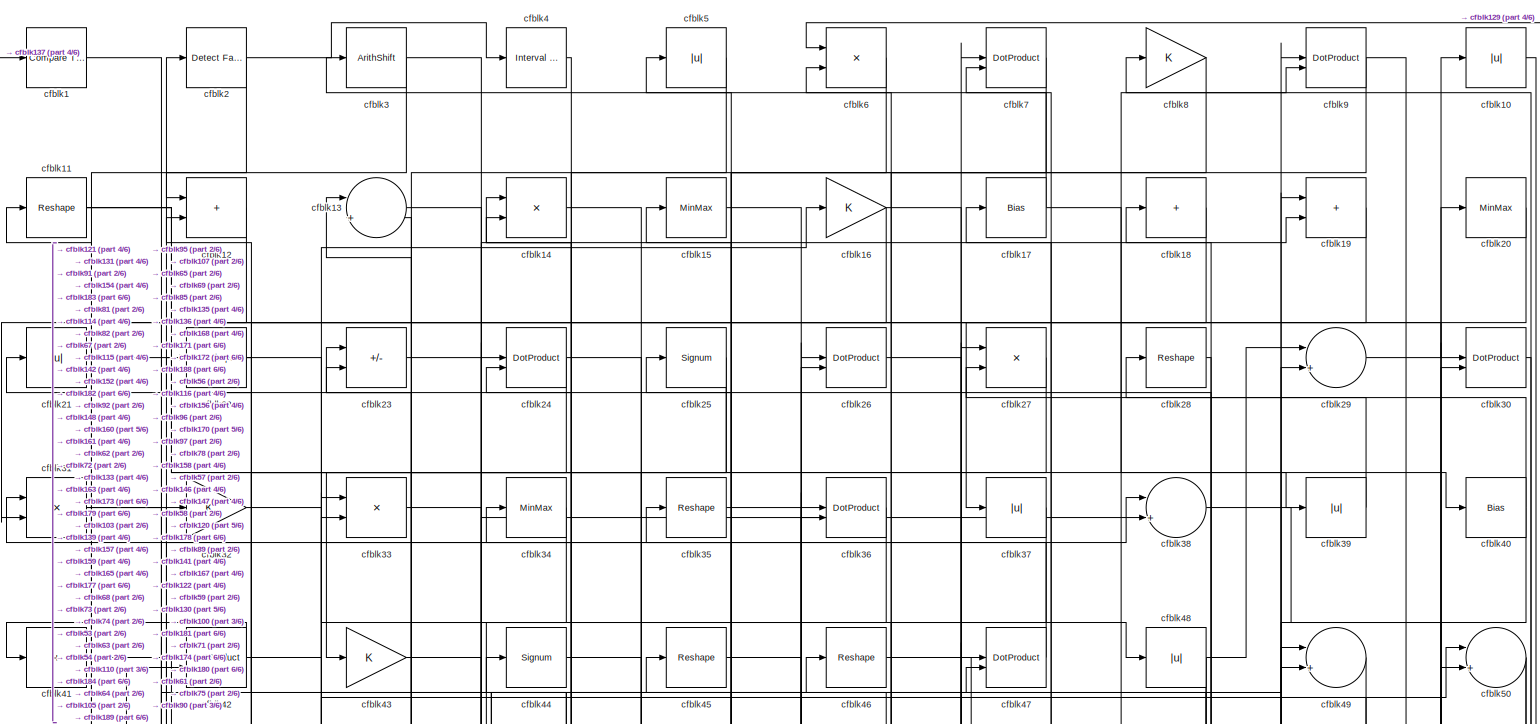
[diagram: root canvas - part 1/6, full width, top band]
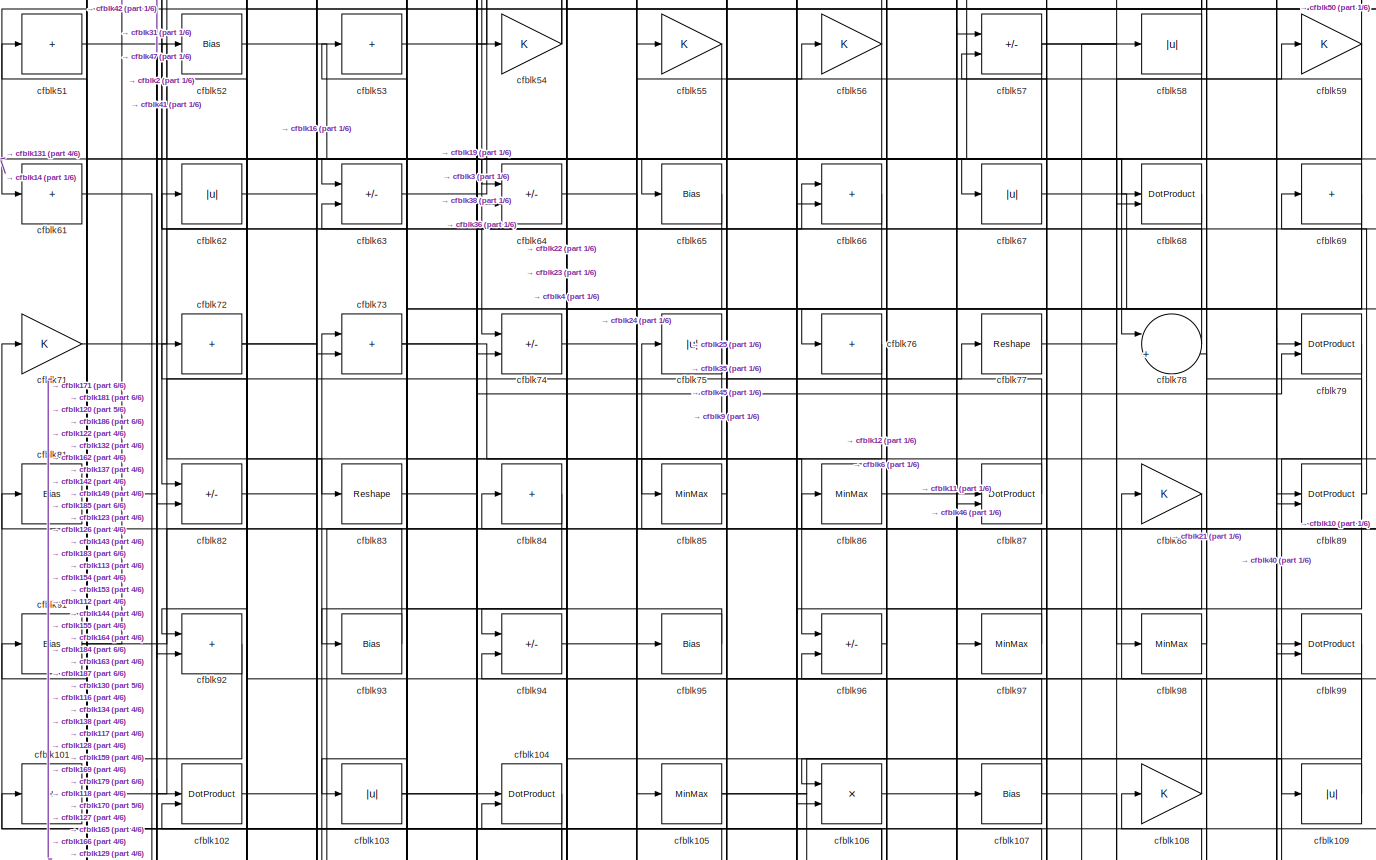
[diagram: root canvas - part 2/6, full width, middle band]
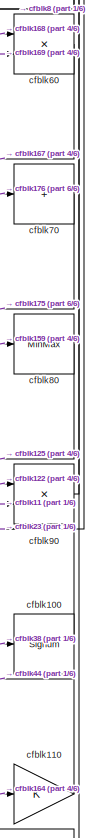
[diagram: root canvas - part 3/6, middle right region]
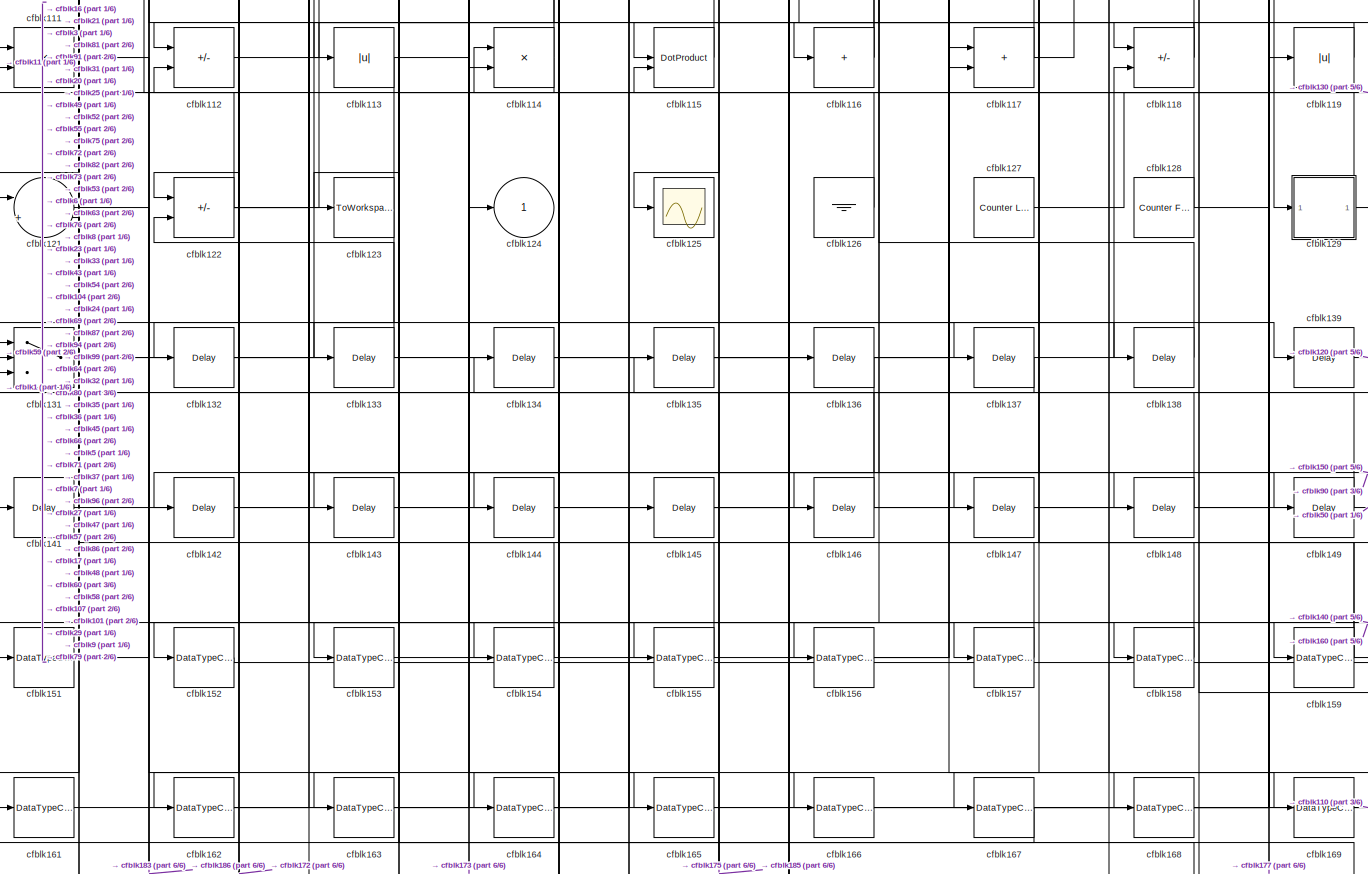
[diagram: root canvas - part 4/6, full width, bottom band]
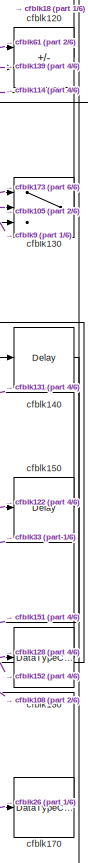
[diagram: root canvas - part 5/6, bottom right region]
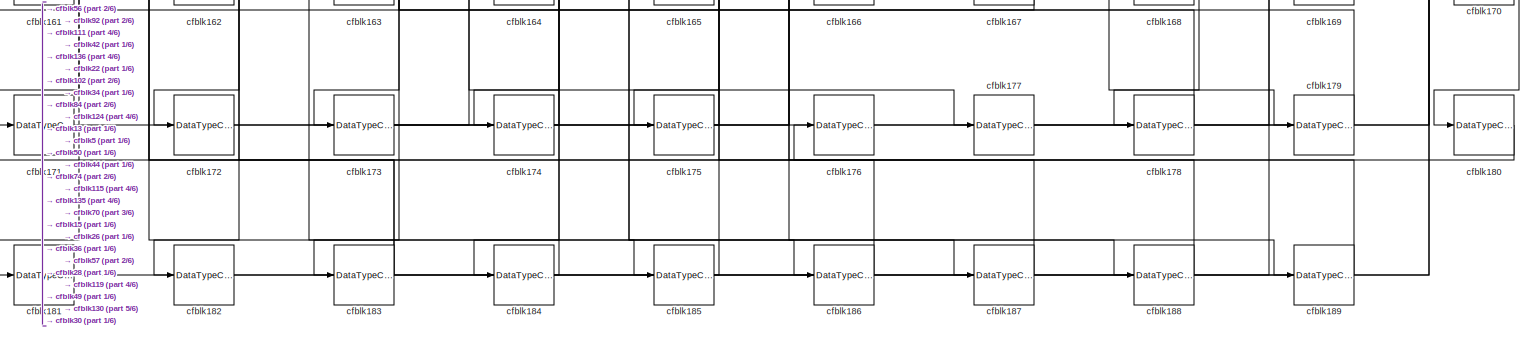
[diagram: root canvas - part 6/6, full width, bottom band]
MODEL slx_008d7ec1de27
KIND model
CONFIG AbsTol = auto
CONFIG EnableMultiTasking = off
CONFIG FixedStep = auto
CONFIG MaxStep = auto
CONFIG MinStep = auto
CONFIG RelTol = 1e-3
CONFIG SampleTimeConstraint = Unconstrained
CONFIG SolverName = VariableStepAuto
CONFIG StartTime = 0.0
CONFIG StopTime = 10.0
BLOCK [Reference] cfblk1  REF=hdlsllib/Logic and Bit
Operations/Compare
To Constant
  SourceBlock = hdlsllib/Logic and Bit\nOperations/Compare\nTo Constant
  SourceType = Compare To Constant
BLOCK [Abs] cfblk10
  SaturateOnIntegerOverflow = off
BLOCK [Signum] cfblk100
BLOCK [Sum] cfblk101
  IconShape = rectangular
  Inputs = +
BLOCK [DotProduct] cfblk102
  OutDataTypeStr = Inherit: Inherit via internal rule
BLOCK [Abs] cfblk103
  SaturateOnIntegerOverflow = off
BLOCK [DotProduct] cfblk104
  OutDataTypeStr = Inherit: Inherit via internal rule
BLOCK [MinMax] cfblk105
BLOCK [Product] cfblk106
  Inputs = */
  RndMeth = Zero
  SaturateOnIntegerOverflow = on
BLOCK [Bias] cfblk107
  Bias = 0.0
  SaturateOnIntegerOverflow = off
BLOCK [Gain] cfblk108
BLOCK [Abs] cfblk109
  SaturateOnIntegerOverflow = off
BLOCK [Reshape] cfblk11
BLOCK [Gain] cfblk110
BLOCK [Product] cfblk111
  Inputs = */
  RndMeth = Zero
  SaturateOnIntegerOverflow = on
BLOCK [Sum] cfblk112
  IconShape = rectangular
  Inputs = +-
BLOCK [Abs] cfblk113
  SaturateOnIntegerOverflow = off
BLOCK [Product] cfblk114
  Inputs = */
  RndMeth = Zero
  SaturateOnIntegerOverflow = on
BLOCK [DotProduct] cfblk115
  OutDataTypeStr = Inherit: Inherit via internal rule
BLOCK [Sum] cfblk116
  IconShape = rectangular
  Inputs = +
BLOCK [Sum] cfblk117
  IconShape = rectangular
BLOCK [Sum] cfblk118
  IconShape = rectangular
  Inputs = +-
BLOCK [Abs] cfblk119
  SaturateOnIntegerOverflow = off
BLOCK [Sum] cfblk12
  IconShape = rectangular
BLOCK [Sum] cfblk120
  IconShape = rectangular
  Inputs = +-
BLOCK [Sum] cfblk121
  Inputs = |++
BLOCK [Sum] cfblk122
  IconShape = rectangular
  Inputs = +-
BLOCK [ToWorkspace] cfblk123
  MaxDataPoints = inf
  SampleTime = -1
  SaveFormat = Timeseries
  VariableName = simout
BLOCK [Outport] cfblk124
  VectorParamsAs1DForOutWhenUnconnected = off
BLOCK [Scope] cfblk125
  Floating = off
  NumInputPorts = 1
  ScopeSpecificationString = Simulink.scopes.TimeScopeBlockCfg('CurrentConfiguration', extmgr.ConfigurationSet(extmgr.Configuration('Core','General UI',true),extmgr.Configuration('Core','Source UI',true),extmgr.Configuration('Sources','WiredSimulink',true,'DataLoggingVariableName','ScopeData2','DataLoggingSaveFormat','Array','DataLoggingLimitDataPoints',true,'DataLoggingDecimation','1'),extmgr.Configuration('Visuals','Time Do...<+868ch>
BLOCK [Ground] cfblk126
BLOCK [Reference] cfblk127  REF=hdlsllib/Sources/Counter
Limited
  SourceBlock = hdlsllib/Sources/Counter\nLimited
  SourceType = Counter Limited
BLOCK [Reference] cfblk128  REF=hdlsllib/Sources/Counter
Free-Running
  SourceBlock = hdlsllib/Sources/Counter\nFree-Running
  SourceType = Counter Free-Running
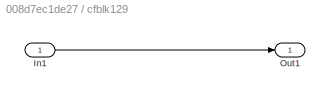
BLOCK [SubSystem] cfblk129
  LibrarySourceBlock = hdlsllib/Ports &\nSubsystems/Subsystem
BLOCK [Inport] cfblk129/In1
BLOCK [Outport] cfblk129/Out1
BLOCK [Sum] cfblk13
  Inputs = |++
BLOCK [Switch] cfblk130
  InputSameDT = off
  SaturateOnIntegerOverflow = off
BLOCK [Switch] cfblk131
  InputSameDT = off
  SaturateOnIntegerOverflow = off
BLOCK [Delay] cfblk132
  InputPortMap = u0
  SampleTime = 1
BLOCK [Delay] cfblk133
  InputPortMap = u0
  SampleTime = 1
BLOCK [Delay] cfblk134
  InputPortMap = u0
  SampleTime = 1
BLOCK [Delay] cfblk135
  InputPortMap = u0
  SampleTime = 1
BLOCK [Delay] cfblk136
  InputPortMap = u0
  SampleTime = 1
BLOCK [Delay] cfblk137
  InputPortMap = u0
  SampleTime = 1
BLOCK [Delay] cfblk138
  InputPortMap = u0
  SampleTime = 1
BLOCK [Delay] cfblk139
  InputPortMap = u0
  SampleTime = 1
BLOCK [Product] cfblk14
  Inputs = */
  RndMeth = Zero
  SaturateOnIntegerOverflow = on
BLOCK [Delay] cfblk140
  InputPortMap = u0
  SampleTime = 1
BLOCK [Delay] cfblk141
  InputPortMap = u0
  SampleTime = 1
BLOCK [Delay] cfblk142
  InputPortMap = u0
  SampleTime = 1
BLOCK [Delay] cfblk143
  InputPortMap = u0
  SampleTime = 1
BLOCK [Delay] cfblk144
  InputPortMap = u0
  SampleTime = 1
BLOCK [Delay] cfblk145
  InputPortMap = u0
  SampleTime = 1
BLOCK [Delay] cfblk146
  InputPortMap = u0
  SampleTime = 1
BLOCK [Delay] cfblk147
  InputPortMap = u0
  SampleTime = 1
BLOCK [Delay] cfblk148
  InputPortMap = u0
  SampleTime = 1
BLOCK [Delay] cfblk149
  InputPortMap = u0
  SampleTime = 1
BLOCK [MinMax] cfblk15
BLOCK [Delay] cfblk150
  InputPortMap = u0
  SampleTime = 1
BLOCK [DataTypeConversion] cfblk151
  OutDataTypeStr = uint8
  RndMeth = Floor
  SaturateOnIntegerOverflow = off
BLOCK [DataTypeConversion] cfblk152
  OutDataTypeStr = uint8
  RndMeth = Floor
  SaturateOnIntegerOverflow = off
BLOCK [DataTypeConversion] cfblk153
  OutDataTypeStr = uint8
  RndMeth = Floor
  SaturateOnIntegerOverflow = off
BLOCK [DataTypeConversion] cfblk154
  OutDataTypeStr = uint8
  RndMeth = Floor
  SaturateOnIntegerOverflow = off
BLOCK [DataTypeConversion] cfblk155
  OutDataTypeStr = uint8
  RndMeth = Floor
  SaturateOnIntegerOverflow = off
BLOCK [DataTypeConversion] cfblk156
  OutDataTypeStr = uint8
  RndMeth = Floor
  SaturateOnIntegerOverflow = off
BLOCK [DataTypeConversion] cfblk157
  OutDataTypeStr = uint8
  RndMeth = Floor
  SaturateOnIntegerOverflow = off
BLOCK [DataTypeConversion] cfblk158
  OutDataTypeStr = uint8
  RndMeth = Floor
  SaturateOnIntegerOverflow = off
BLOCK [DataTypeConversion] cfblk159
  RndMeth = Floor
  SaturateOnIntegerOverflow = off
BLOCK [Gain] cfblk16
BLOCK [DataTypeConversion] cfblk160
  OutDataTypeStr = uint8
  RndMeth = Floor
  SaturateOnIntegerOverflow = off
BLOCK [DataTypeConversion] cfblk161
  OutDataTypeStr = uint8
  RndMeth = Floor
  SaturateOnIntegerOverflow = off
BLOCK [DataTypeConversion] cfblk162
  RndMeth = Floor
  SaturateOnIntegerOverflow = off
BLOCK [DataTypeConversion] cfblk163
  OutDataTypeStr = uint8
  RndMeth = Floor
  SaturateOnIntegerOverflow = off
BLOCK [DataTypeConversion] cfblk164
  RndMeth = Floor
  SaturateOnIntegerOverflow = off
BLOCK [DataTypeConversion] cfblk165
  OutDataTypeStr = uint8
  RndMeth = Floor
  SaturateOnIntegerOverflow = off
BLOCK [DataTypeConversion] cfblk166
  OutDataTypeStr = uint8
  RndMeth = Floor
  SaturateOnIntegerOverflow = off
BLOCK [DataTypeConversion] cfblk167
  RndMeth = Floor
  SaturateOnIntegerOverflow = off
BLOCK [DataTypeConversion] cfblk168
  OutDataTypeStr = uint8
  RndMeth = Floor
  SaturateOnIntegerOverflow = off
BLOCK [DataTypeConversion] cfblk169
  OutDataTypeStr = uint8
  RndMeth = Floor
  SaturateOnIntegerOverflow = off
BLOCK [Bias] cfblk17
  Bias = 0.0
  SaturateOnIntegerOverflow = off
BLOCK [DataTypeConversion] cfblk170
  OutDataTypeStr = uint8
  RndMeth = Floor
  SaturateOnIntegerOverflow = off
BLOCK [DataTypeConversion] cfblk171
  OutDataTypeStr = uint8
  RndMeth = Floor
  SaturateOnIntegerOverflow = off
BLOCK [DataTypeConversion] cfblk172
  OutDataTypeStr = uint8
  RndMeth = Floor
  SaturateOnIntegerOverflow = off
BLOCK [DataTypeConversion] cfblk173
  RndMeth = Floor
  SaturateOnIntegerOverflow = off
BLOCK [DataTypeConversion] cfblk174
  OutDataTypeStr = uint8
  RndMeth = Floor
  SaturateOnIntegerOverflow = off
BLOCK [DataTypeConversion] cfblk175
  OutDataTypeStr = uint8
  RndMeth = Floor
  SaturateOnIntegerOverflow = off
BLOCK [DataTypeConversion] cfblk176
  OutDataTypeStr = uint8
  RndMeth = Floor
  SaturateOnIntegerOverflow = off
BLOCK [DataTypeConversion] cfblk177
  OutDataTypeStr = uint8
  RndMeth = Floor
  SaturateOnIntegerOverflow = off
BLOCK [DataTypeConversion] cfblk178
  OutDataTypeStr = uint8
  RndMeth = Floor
  SaturateOnIntegerOverflow = off
BLOCK [DataTypeConversion] cfblk179
  OutDataTypeStr = uint8
  RndMeth = Floor
  SaturateOnIntegerOverflow = off
BLOCK [Sum] cfblk18
  IconShape = rectangular
  Inputs = +
BLOCK [DataTypeConversion] cfblk180
  OutDataTypeStr = uint8
  RndMeth = Floor
  SaturateOnIntegerOverflow = off
BLOCK [DataTypeConversion] cfblk181
  OutDataTypeStr = uint8
  RndMeth = Floor
  SaturateOnIntegerOverflow = off
BLOCK [DataTypeConversion] cfblk182
  OutDataTypeStr = uint8
  RndMeth = Floor
  SaturateOnIntegerOverflow = off
BLOCK [DataTypeConversion] cfblk183
  RndMeth = Floor
  SaturateOnIntegerOverflow = off
BLOCK [DataTypeConversion] cfblk184
  OutDataTypeStr = uint8
  RndMeth = Floor
  SaturateOnIntegerOverflow = off
BLOCK [DataTypeConversion] cfblk185
  OutDataTypeStr = uint8
  RndMeth = Floor
  SaturateOnIntegerOverflow = off
BLOCK [DataTypeConversion] cfblk186
  OutDataTypeStr = uint8
  RndMeth = Floor
  SaturateOnIntegerOverflow = off
BLOCK [DataTypeConversion] cfblk187
  OutDataTypeStr = uint8
  RndMeth = Floor
  SaturateOnIntegerOverflow = off
BLOCK [DataTypeConversion] cfblk188
  OutDataTypeStr = uint8
  RndMeth = Floor
  SaturateOnIntegerOverflow = off
BLOCK [DataTypeConversion] cfblk189
  OutDataTypeStr = uint8
  RndMeth = Floor
  SaturateOnIntegerOverflow = off
BLOCK [Sum] cfblk19
  IconShape = rectangular
BLOCK [Reference] cfblk2  REF=hdlsllib/Logic and Bit
Operations/Detect Fall
Negative
  SourceBlock = hdlsllib/Logic and Bit\nOperations/Detect Fall\nNegative
  SourceType = Detect Fall Negative
BLOCK [MinMax] cfblk20
BLOCK [Abs] cfblk21
  SaturateOnIntegerOverflow = off
BLOCK [Reshape] cfblk22
BLOCK [Sum] cfblk23
  IconShape = rectangular
  Inputs = +-
BLOCK [DotProduct] cfblk24
  OutDataTypeStr = Inherit: Inherit via internal rule
BLOCK [Signum] cfblk25
BLOCK [DotProduct] cfblk26
  OutDataTypeStr = Inherit: Inherit via internal rule
BLOCK [Product] cfblk27
  Inputs = */
  RndMeth = Zero
  SaturateOnIntegerOverflow = on
BLOCK [Reshape] cfblk28
BLOCK [Sum] cfblk29
  Inputs = |++
BLOCK [ArithShift] cfblk3
  BitShiftNumber = 8
  InputPortMap = u0
BLOCK [DotProduct] cfblk30
  OutDataTypeStr = Inherit: Inherit via internal rule
BLOCK [Product] cfblk31
  Inputs = */
  RndMeth = Zero
  SaturateOnIntegerOverflow = on
BLOCK [Gain] cfblk32
BLOCK [Product] cfblk33
  Inputs = */
  RndMeth = Zero
  SaturateOnIntegerOverflow = on
BLOCK [MinMax] cfblk34
BLOCK [Reshape] cfblk35
BLOCK [DotProduct] cfblk36
  OutDataTypeStr = Inherit: Inherit via internal rule
BLOCK [Abs] cfblk37
  SaturateOnIntegerOverflow = off
BLOCK [Sum] cfblk38
  Inputs = |++
BLOCK [Abs] cfblk39
  SaturateOnIntegerOverflow = off
BLOCK [Reference] cfblk4  REF=hdlsllib/Logic and Bit
Operations/Interval Test
  SourceBlock = hdlsllib/Logic and Bit\nOperations/Interval Test
  SourceType = Interval Test
BLOCK [Bias] cfblk40
  Bias = 0.0
  SaturateOnIntegerOverflow = off
BLOCK [Sum] cfblk41
  IconShape = rectangular
  Inputs = +
BLOCK [DotProduct] cfblk42
  OutDataTypeStr = Inherit: Inherit via internal rule
BLOCK [Gain] cfblk43
BLOCK [Signum] cfblk44
BLOCK [Reshape] cfblk45
BLOCK [Reshape] cfblk46
BLOCK [DotProduct] cfblk47
  OutDataTypeStr = Inherit: Inherit via internal rule
BLOCK [Abs] cfblk48
  SaturateOnIntegerOverflow = off
BLOCK [Sum] cfblk49
  Inputs = |++
BLOCK [Abs] cfblk5
  SaturateOnIntegerOverflow = off
BLOCK [Sum] cfblk50
  Inputs = |++
BLOCK [Sum] cfblk51
  IconShape = rectangular
  Inputs = +
BLOCK [Bias] cfblk52
  Bias = 0.0
  SaturateOnIntegerOverflow = off
BLOCK [Sum] cfblk53
  IconShape = rectangular
  Inputs = +
BLOCK [Gain] cfblk54
BLOCK [Gain] cfblk55
BLOCK [Gain] cfblk56
BLOCK [Sum] cfblk57
  IconShape = rectangular
  Inputs = +-
BLOCK [Abs] cfblk58
  SaturateOnIntegerOverflow = off
BLOCK [Gain] cfblk59
BLOCK [Product] cfblk6
  Inputs = */
  RndMeth = Zero
  SaturateOnIntegerOverflow = on
BLOCK [Product] cfblk60
  Inputs = */
  RndMeth = Zero
  SaturateOnIntegerOverflow = on
BLOCK [Sum] cfblk61
  IconShape = rectangular
  Inputs = +
BLOCK [Abs] cfblk62
  SaturateOnIntegerOverflow = off
BLOCK [Sum] cfblk63
  IconShape = rectangular
  Inputs = +-
BLOCK [Sum] cfblk64
  IconShape = rectangular
  Inputs = +-
BLOCK [Bias] cfblk65
  Bias = 0.0
  SaturateOnIntegerOverflow = off
BLOCK [Sum] cfblk66
  IconShape = rectangular
BLOCK [Abs] cfblk67
  SaturateOnIntegerOverflow = off
BLOCK [DotProduct] cfblk68
  OutDataTypeStr = Inherit: Inherit via internal rule
BLOCK [Sum] cfblk69
  IconShape = rectangular
  Inputs = +
BLOCK [DotProduct] cfblk7
  OutDataTypeStr = Inherit: Inherit via internal rule
BLOCK [Sum] cfblk70
  IconShape = rectangular
  Inputs = +
BLOCK [Gain] cfblk71
BLOCK [Sum] cfblk72
  IconShape = rectangular
  Inputs = +
BLOCK [Sum] cfblk73
  IconShape = rectangular
BLOCK [Sum] cfblk74
  IconShape = rectangular
  Inputs = +-
BLOCK [Abs] cfblk75
  SaturateOnIntegerOverflow = off
BLOCK [Sum] cfblk76
  IconShape = rectangular
  Inputs = +
BLOCK [Reshape] cfblk77
BLOCK [Sum] cfblk78
  Inputs = |++
BLOCK [DotProduct] cfblk79
  OutDataTypeStr = Inherit: Inherit via internal rule
BLOCK [Gain] cfblk8
BLOCK [MinMax] cfblk80
BLOCK [Bias] cfblk81
  Bias = 0.0
  SaturateOnIntegerOverflow = off
BLOCK [Sum] cfblk82
  IconShape = rectangular
  Inputs = +-
BLOCK [Reshape] cfblk83
BLOCK [Sum] cfblk84
  IconShape = rectangular
  Inputs = +
BLOCK [MinMax] cfblk85
BLOCK [MinMax] cfblk86
BLOCK [DotProduct] cfblk87
  OutDataTypeStr = Inherit: Inherit via internal rule
BLOCK [Gain] cfblk88
BLOCK [DotProduct] cfblk89
  OutDataTypeStr = Inherit: Inherit via internal rule
BLOCK [DotProduct] cfblk9
  OutDataTypeStr = Inherit: Inherit via internal rule
BLOCK [Product] cfblk90
  Inputs = */
  RndMeth = Zero
  SaturateOnIntegerOverflow = on
BLOCK [Bias] cfblk91
  Bias = 0.0
  SaturateOnIntegerOverflow = off
BLOCK [Sum] cfblk92
  IconShape = rectangular
BLOCK [Bias] cfblk93
  Bias = 0.0
  SaturateOnIntegerOverflow = off
BLOCK [Sum] cfblk94
  IconShape = rectangular
  Inputs = +-
BLOCK [Bias] cfblk95
  Bias = 0.0
  SaturateOnIntegerOverflow = off
BLOCK [Sum] cfblk96
  IconShape = rectangular
  Inputs = +-
BLOCK [MinMax] cfblk97
BLOCK [MinMax] cfblk98
BLOCK [DotProduct] cfblk99
  OutDataTypeStr = Inherit: Inherit via internal rule
LINE cfblk100:1 -> cfblk23:2
LINE cfblk101:1 -> cfblk77:1
LINE cfblk102:1 -> cfblk185:1
NET cfblk103:1 -> cfblk24:1, cfblk38:2
LINE cfblk104:1 -> cfblk153:1
NET cfblk105:1 -> cfblk109:1, cfblk130:2
LINE cfblk106:1 -> cfblk107:1
NET cfblk107:1 -> cfblk169:1, cfblk35:1
LINE cfblk108:1 -> cfblk62:1
LINE cfblk109:1 -> cfblk88:1
LINE cfblk10:1 -> cfblk75:1
LINE cfblk110:1 -> cfblk44:1
LINE cfblk111:1 -> cfblk186:1
LINE cfblk112:1 -> cfblk118:1
NET cfblk113:1 -> cfblk161:1, cfblk79:2
NET cfblk114:1 -> cfblk111:2, cfblk11:1
LINE cfblk115:1 -> cfblk32:1
NET cfblk116:1 -> cfblk5:1, cfblk71:1
NET cfblk117:1 -> cfblk58:1, cfblk72:1
NET cfblk118:1 -> cfblk101:1, cfblk113:1
LINE cfblk119:1 -> cfblk115:1
NET cfblk11:1 -> cfblk90:2, cfblk97:1
LINE cfblk120:1 -> cfblk18:1
LINE cfblk121:1 -> cfblk166:1
NET cfblk122:1 -> cfblk150:1, cfblk158:1, cfblk52:1, cfblk90:1, cfblk91:1
LINE cfblk126:1 -> cfblk63:2
LINE cfblk127:1 -> cfblk79:1
NET cfblk128:1 -> cfblk160:1, cfblk57:2
LINE cfblk129/In1:1 -> cfblk129/Out1:1
NET cfblk129:1 -> cfblk53:1, cfblk6:1
LINE cfblk12:1 -> cfblk31:2
LINE cfblk130:1 -> cfblk114:1
NET cfblk131:1 -> cfblk57:1, cfblk73:1
LINE cfblk132:1 -> cfblk118:2
LINE cfblk133:1 -> cfblk122:2
LINE cfblk134:1 -> cfblk87:1
LINE cfblk135:1 -> cfblk36:2
LINE cfblk136:1 -> cfblk172:1
LINE cfblk137:1 -> cfblk1:1
LINE cfblk138:1 -> cfblk96:2
LINE cfblk139:1 -> cfblk120:2
LINE cfblk13:1 -> cfblk177:1
LINE cfblk140:1 -> cfblk151:1
LINE cfblk141:1 -> cfblk49:2
LINE cfblk142:1 -> cfblk73:2
LINE cfblk143:1 -> cfblk66:2
LINE cfblk144:1 -> cfblk94:2
LINE cfblk145:1 -> cfblk117:1
LINE cfblk146:1 -> cfblk24:2
LINE cfblk147:1 -> cfblk50:2
LINE cfblk148:1 -> cfblk27:1
LINE cfblk149:1 -> cfblk112:2
LINE cfblk14:1 -> cfblk68:2
LINE cfblk150:1 -> cfblk131:3
LINE cfblk151:1 -> cfblk155:1
LINE cfblk152:1 -> cfblk140:1
LINE cfblk153:1 -> cfblk87:2
LINE cfblk154:1 -> cfblk104:1
LINE cfblk155:1 -> cfblk104:2
LINE cfblk156:1 -> cfblk47:1
LINE cfblk157:1 -> cfblk7:1
LINE cfblk158:1 -> cfblk7:2
NET cfblk159:1 -> cfblk17:1, cfblk80:1, cfblk81:1
LINE cfblk15:1 -> cfblk188:1
LINE cfblk160:1 -> cfblk33:1
LINE cfblk161:1 -> cfblk33:2
NET cfblk162:1 -> cfblk145:1, cfblk54:1
LINE cfblk163:1 -> cfblk55:1
NET cfblk164:1 -> cfblk110:1, cfblk134:1
LINE cfblk165:1 -> cfblk99:1
LINE cfblk166:1 -> cfblk99:2
NET cfblk167:1 -> cfblk141:1, cfblk29:2, cfblk9:1
LINE cfblk168:1 -> cfblk60:1
LINE cfblk169:1 -> cfblk60:2
NET cfblk16:1 -> cfblk121:1, cfblk40:1
LINE cfblk170:1 -> cfblk108:1
LINE cfblk171:1 -> cfblk26:1
LINE cfblk172:1 -> cfblk26:2
NET cfblk173:1 -> cfblk124:1, cfblk130:1
LINE cfblk174:1 -> cfblk34:1
LINE cfblk175:1 -> cfblk115:2
LINE cfblk176:1 -> cfblk70:1
LINE cfblk177:1 -> cfblk119:1
LINE cfblk178:1 -> cfblk13:1
LINE cfblk179:1 -> cfblk13:2
NET cfblk17:1 -> cfblk39:1, cfblk3:1
LINE cfblk180:1 -> cfblk176:1
LINE cfblk181:1 -> cfblk30:1
LINE cfblk182:1 -> cfblk30:2
NET cfblk183:1 -> cfblk111:1, cfblk42:1, cfblk49:1
LINE cfblk184:1 -> cfblk84:1
LINE cfblk185:1 -> cfblk135:1
LINE cfblk186:1 -> cfblk102:1
LINE cfblk187:1 -> cfblk102:2
LINE cfblk188:1 -> cfblk36:1
LINE cfblk189:1 -> cfblk15:1
LINE cfblk18:1 -> cfblk37:1
LINE cfblk19:1 -> cfblk82:2
LINE cfblk1:1 -> cfblk154:1
LINE cfblk20:1 -> cfblk142:1
NET cfblk21:1 -> cfblk105:1, cfblk121:2
NET cfblk22:1 -> cfblk182:1, cfblk48:1
LINE cfblk23:1 -> cfblk165:1
NET cfblk24:1 -> cfblk92:1, cfblk95:1
NET cfblk25:1 -> cfblk152:1, cfblk43:1
LINE cfblk26:1 -> cfblk170:1
LINE cfblk27:1 -> cfblk163:1
LINE cfblk28:1 -> cfblk178:1
LINE cfblk29:1 -> cfblk20:1
NET cfblk2:1 -> cfblk12:1, cfblk4:1
LINE cfblk30:1 -> cfblk180:1
NET cfblk31:1 -> cfblk114:2, cfblk82:1
LINE cfblk32:1 -> cfblk148:1
LINE cfblk33:1 -> cfblk159:1
LINE cfblk34:1 -> cfblk173:1
LINE cfblk35:1 -> cfblk136:1
LINE cfblk36:1 -> cfblk74:1
LINE cfblk37:1 -> cfblk116:1
LINE cfblk38:1 -> cfblk100:1
LINE cfblk39:1 -> cfblk28:1
NET cfblk3:1 -> cfblk131:1, cfblk68:1
NET cfblk40:1 -> cfblk27:2, cfblk89:2
LINE cfblk41:1 -> cfblk67:1
NET cfblk42:1 -> cfblk38:1, cfblk41:1
NET cfblk43:1 -> cfblk139:1, cfblk157:1
LINE cfblk44:1 -> cfblk189:1
LINE cfblk45:1 -> cfblk168:1
LINE cfblk46:1 -> cfblk78:1
LINE cfblk47:1 -> cfblk31:1
NET cfblk48:1 -> cfblk146:1, cfblk147:1, cfblk29:1
LINE cfblk49:1 -> cfblk122:1
LINE cfblk4:1 -> cfblk64:1
NET cfblk50:1 -> cfblk174:1, cfblk61:1
LINE cfblk51:1 -> cfblk83:1
LINE cfblk52:1 -> cfblk98:1
LINE cfblk53:1 -> cfblk19:1
NET cfblk54:1 -> cfblk22:1, cfblk23:1
LINE cfblk55:1 -> cfblk162:1
NET cfblk56:1 -> cfblk12:2, cfblk171:1
NET cfblk57:1 -> cfblk179:1, cfblk92:2, cfblk9:2
NET cfblk58:1 -> cfblk14:2, cfblk74:2
NET cfblk59:1 -> cfblk131:2, cfblk14:1, cfblk63:1
LINE cfblk5:1 -> cfblk184:1
LINE cfblk60:1 -> cfblk167:1
LINE cfblk61:1 -> cfblk120:1
LINE cfblk62:1 -> cfblk50:1
LINE cfblk63:1 -> cfblk46:1
LINE cfblk64:1 -> cfblk117:2
LINE cfblk65:1 -> cfblk103:1
LINE cfblk66:1 -> cfblk94:1
LINE cfblk67:1 -> cfblk89:1
LINE cfblk68:1 -> cfblk76:1
NET cfblk69:1 -> cfblk143:1, cfblk144:1, cfblk45:1
LINE cfblk6:1 -> cfblk65:1
LINE cfblk70:1 -> cfblk175:1
LINE cfblk71:1 -> cfblk10:1
NET cfblk72:1 -> cfblk149:1, cfblk16:1
NET cfblk73:1 -> cfblk19:2, cfblk96:1
LINE cfblk74:1 -> cfblk187:1
LINE cfblk75:1 -> cfblk132:1
LINE cfblk76:1 -> cfblk123:1
LINE cfblk77:1 -> cfblk59:1
LINE cfblk78:1 -> cfblk2:1
LINE cfblk79:1 -> cfblk129:1
LINE cfblk7:1 -> cfblk156:1
LINE cfblk80:1 -> cfblk125:1
LINE cfblk81:1 -> cfblk47:2
LINE cfblk82:1 -> cfblk137:1
LINE cfblk83:1 -> cfblk66:1
LINE cfblk84:1 -> cfblk183:1
LINE cfblk85:1 -> cfblk25:1
LINE cfblk86:1 -> cfblk138:1
LINE cfblk87:1 -> cfblk112:1
LINE cfblk88:1 -> cfblk106:1
NET cfblk89:1 -> cfblk106:2, cfblk21:1, cfblk69:1
LINE cfblk8:1 -> cfblk133:1
LINE cfblk90:1 -> cfblk8:1
NET cfblk91:1 -> cfblk42:2, cfblk64:2
LINE cfblk92:1 -> cfblk181:1
LINE cfblk93:1 -> cfblk51:1
LINE cfblk94:1 -> cfblk56:1
LINE cfblk95:1 -> cfblk93:1
LINE cfblk96:1 -> cfblk6:2
LINE cfblk97:1 -> cfblk86:1
LINE cfblk98:1 -> cfblk78:2
LINE cfblk99:1 -> cfblk164:1
NET cfblk9:1 -> cfblk130:3, cfblk85:1
note: NET lines group one-source signal fan-out (src -> all destinations, sorted); 1:1 wires keep LINE
